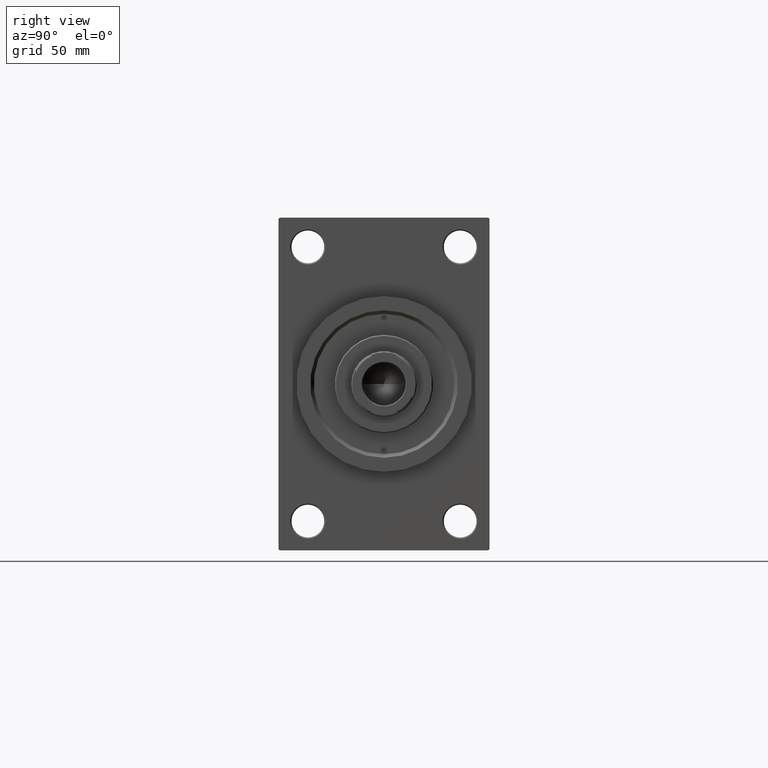
[diagram: clean part render]
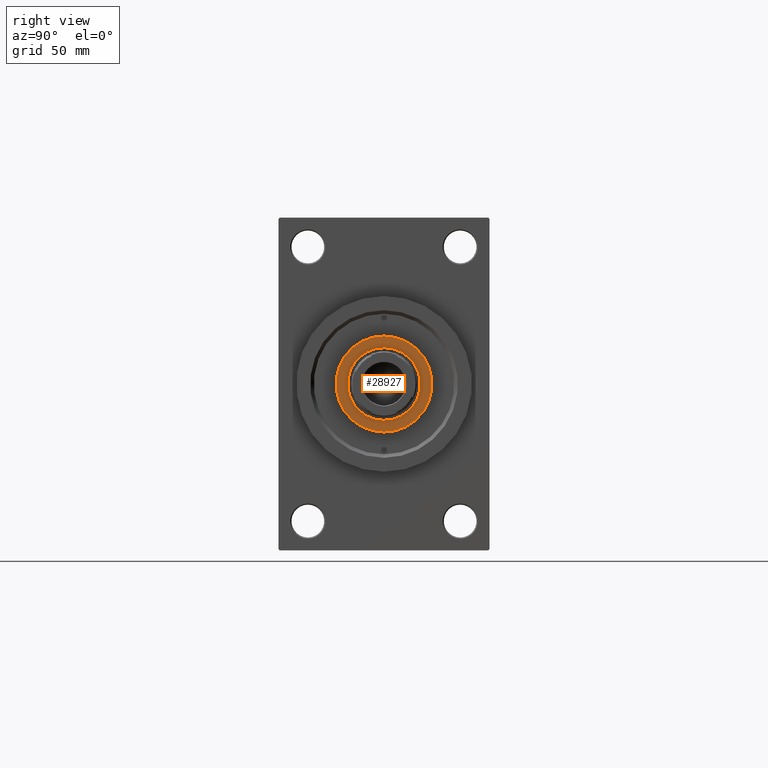
[diagram: same view with one face highlighted and labeled with its STEP entity id]
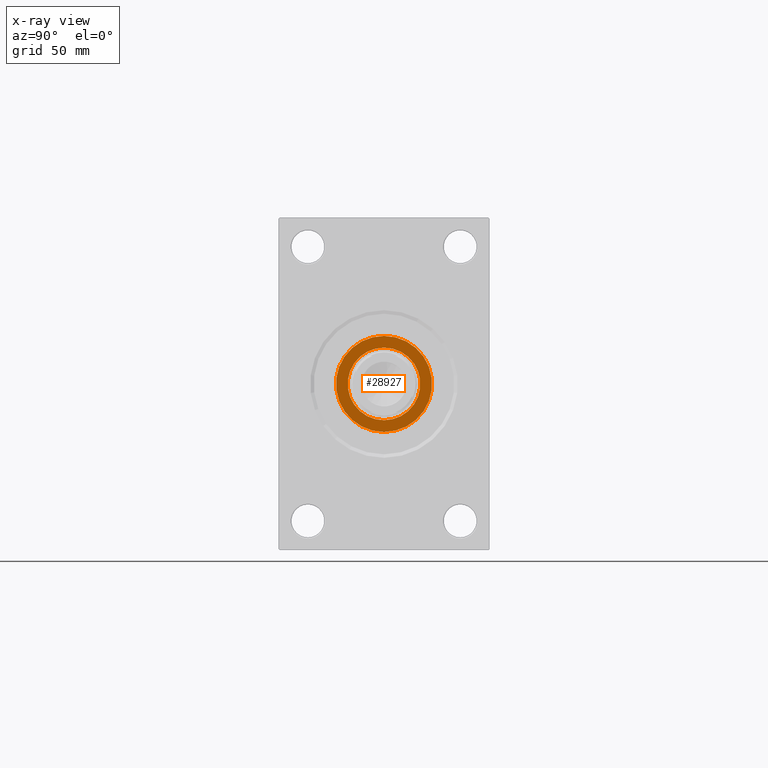
[diagram: x-ray of the same camera — body ghosted, the highlighted face saturated]
A machine part, right view. The second image highlights one B-rep face of the part: STEP entity #28927.
The next image is the same camera in x-ray: the body ghosted, the highlighted face saturated — about 0% of this face is hidden behind the body in this view.
In plain terms, the highlighted planar face has unit normal (1, -0, -0).
Its self-contained STEP definition (entity closure, byte-faithful):
#1586 = VERTEX_POINT ( 'NONE', #29901 ) ;
#2168 = CARTESIAN_POINT ( 'NONE',  ( 0.000000000000000000, 0.000000000000000000, 54.26000000000000512 ) ) ;
#2521 = DIRECTION ( 'NONE',  ( 1.000000000000000000, 0.000000000000000000, -0.000000000000000000 ) ) ;
#2772 = CARTESIAN_POINT ( 'NONE',  ( 0.000000000000000000, 0.000000000000000000, 54.26000000000000512 ) ) ;
#4840 = EDGE_CURVE ( 'NONE', #31623, #32433, #39852, .T. ) ;
#6106 = PLANE ( 'NONE',  #31524 ) ;
#9134 = DIRECTION ( 'NONE',  ( 1.000000000000000000, 0.000000000000000000, 0.000000000000000000 ) ) ;
#9384 = ORIENTED_EDGE ( 'NONE', *, *, #26821, .F. ) ;
#13518 = CARTESIAN_POINT ( 'NONE',  ( -15.50000000000000000, 1.898202538678397557E-15, 54.26000000000000512 ) ) ;
#16699 = DIRECTION ( 'NONE',  ( 0.000000000000000000, 0.000000000000000000, 1.000000000000000000 ) ) ;
#16704 = ORIENTED_EDGE ( 'NONE', *, *, #18914, .F. ) ;
#16862 = EDGE_CURVE ( 'NONE', #32433, #31623, #45606, .T. ) ;
#17891 = DIRECTION ( 'NONE',  ( 1.000000000000000000, 0.000000000000000000, 0.000000000000000000 ) ) ;
#18749 = CIRCLE ( 'NONE', #39401, 15.50000000000000000 ) ;
#18914 = EDGE_CURVE ( 'NONE', #1586, #19245, #18749, .T. ) ;
#19245 = VERTEX_POINT ( 'NONE', #13518 ) ;
#19251 = DIRECTION ( 'NONE',  ( 0.000000000000000000, 0.000000000000000000, 1.000000000000000000 ) ) ;
#20419 = DIRECTION ( 'NONE',  ( 0.000000000000000000, 0.000000000000000000, 1.000000000000000000 ) ) ;
#20761 = CARTESIAN_POINT ( 'NONE',  ( 0.000000000000000000, 0.000000000000000000, 54.26000000000000512 ) ) ;
#21499 = CIRCLE ( 'NONE', #22255, 15.50000000000000000 ) ;
#22255 = AXIS2_PLACEMENT_3D ( 'NONE', #34102, #19251, #37212 ) ;
#22458 = CARTESIAN_POINT ( 'NONE',  ( -20.50000000000001776, 0.000000000000000000, 54.26000000000000512 ) ) ;
#23913 = AXIS2_PLACEMENT_3D ( 'NONE', #29769, #25720, #30010 ) ;
#24365 = FACE_OUTER_BOUND ( 'NONE', #39979, .T. ) ;
#25720 = DIRECTION ( 'NONE',  ( 0.000000000000000000, 0.000000000000000000, 1.000000000000000000 ) ) ;
#26821 = EDGE_CURVE ( 'NONE', #19245, #1586, #21499, .T. ) ;
#27713 = FACE_BOUND ( 'NONE', #43050, .T. ) ;
#28132 = ORIENTED_EDGE ( 'NONE', *, *, #16862, .T. ) ;
#28187 = DIRECTION ( 'NONE',  ( 0.000000000000000000, 0.000000000000000000, 1.000000000000000000 ) ) ;
#28927 = ADVANCED_FACE ( 'NONE', ( #27713, #24365 ), #6106, .T. ) ;
#29769 = CARTESIAN_POINT ( 'NONE',  ( 0.000000000000000000, 0.000000000000000000, 54.26000000000000512 ) ) ;
#29901 = CARTESIAN_POINT ( 'NONE',  ( 15.50000000000000000, 0.000000000000000000, 54.26000000000000512 ) ) ;
#30010 = DIRECTION ( 'NONE',  ( 1.000000000000000000, 0.000000000000000000, 0.000000000000000000 ) ) ;
#31524 = AXIS2_PLACEMENT_3D ( 'NONE', #20761, #16699, #2521 ) ;
#31623 = VERTEX_POINT ( 'NONE', #39810 ) ;
#32433 = VERTEX_POINT ( 'NONE', #22458 ) ;
#34102 = CARTESIAN_POINT ( 'NONE',  ( 0.000000000000000000, 0.000000000000000000, 54.26000000000000512 ) ) ;
#36256 = ORIENTED_EDGE ( 'NONE', *, *, #4840, .T. ) ;
#37212 = DIRECTION ( 'NONE',  ( 1.000000000000000000, 0.000000000000000000, 0.000000000000000000 ) ) ;
#39401 = AXIS2_PLACEMENT_3D ( 'NONE', #2772, #28187, #17891 ) ;
#39810 = CARTESIAN_POINT ( 'NONE',  ( 20.50000000000001776, 2.541142108230759057E-15, 54.26000000000000512 ) ) ;
#39852 = CIRCLE ( 'NONE', #23913, 20.50000000000001776 ) ;
#39979 = EDGE_LOOP ( 'NONE', ( #28132, #36256 ) ) ;
#40229 = AXIS2_PLACEMENT_3D ( 'NONE', #2168, #20419, #9134 ) ;
#43050 = EDGE_LOOP ( 'NONE', ( #16704, #9384 ) ) ;
#45606 = CIRCLE ( 'NONE', #40229, 20.50000000000001776 ) ;